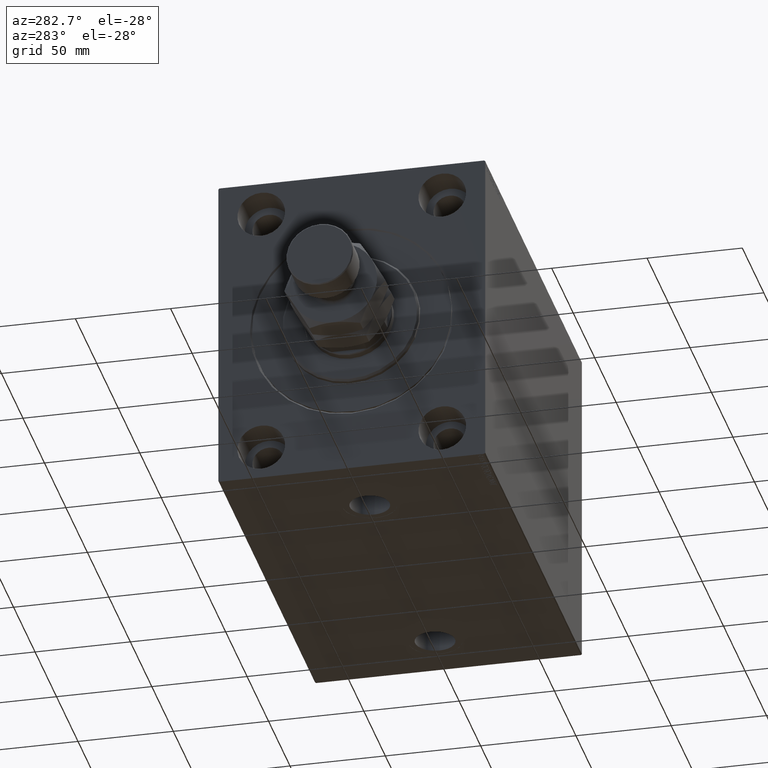
[diagram: clean part render]
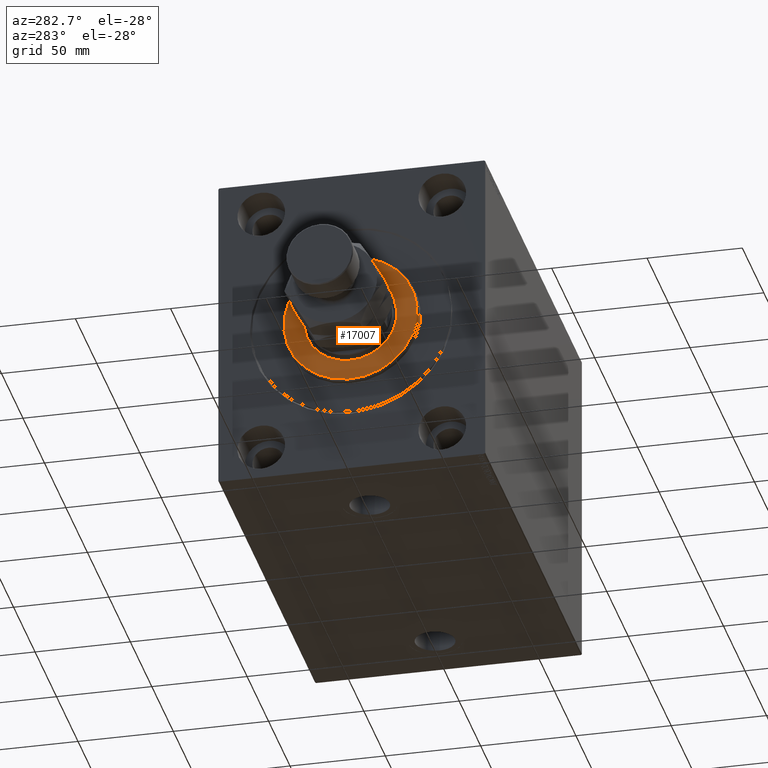
[diagram: same view with one face highlighted and labeled with its STEP entity id]
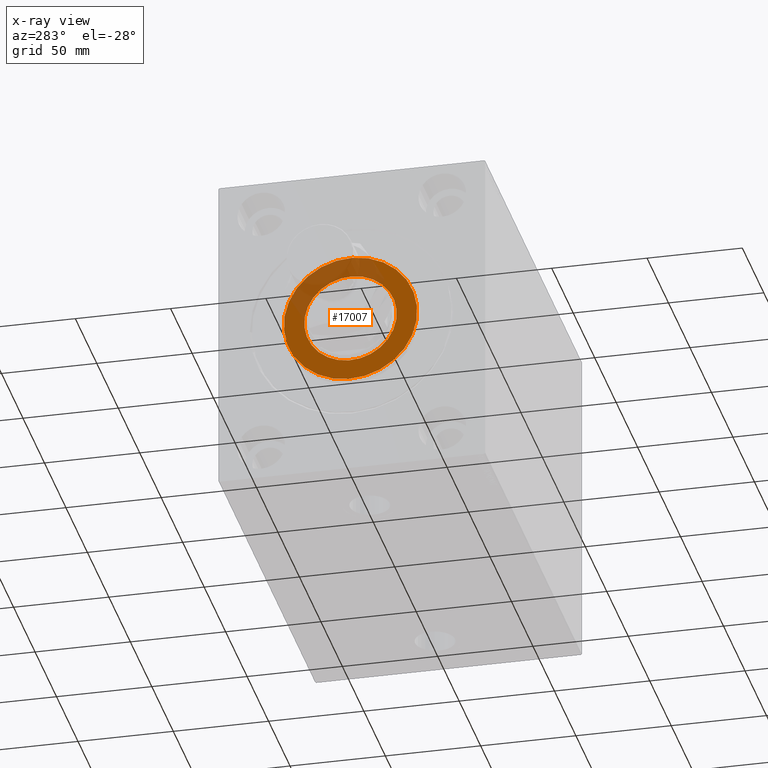
[diagram: x-ray of the same camera — body ghosted, the highlighted face saturated]
A machine part, auxiliary view. The second image highlights one B-rep face of the part: STEP entity #17007.
The next image is the same camera in x-ray: the body ghosted, the highlighted face saturated — about 29% of this face is hidden behind the body in this view.
In plain terms, the highlighted planar face has unit normal (-1, 0, 0).
Its self-contained STEP definition (entity closure, byte-faithful):
#1487 = CARTESIAN_POINT ( 'NONE',  ( 3.000000000000000000, 4.347496136973104859E-15, -35.00000000000002842 ) ) ;
#2569 = DIRECTION ( 'NONE',  ( 0.000000000000000000, 0.000000000000000000, -1.000000000000000000 ) ) ;
#3157 = CARTESIAN_POINT ( 'NONE',  ( 3.000000000000000000, 0.000000000000000000, 0.000000000000000000 ) ) ;
#5021 = EDGE_CURVE ( 'NONE', #36407, #32054, #32203, .T. ) ;
#9462 = DIRECTION ( 'NONE',  ( 0.000000000000000000, 0.000000000000000000, -1.000000000000000000 ) ) ;
#9938 = FACE_OUTER_BOUND ( 'NONE', #25736, .T. ) ;
#15003 = CIRCLE ( 'NONE', #21058, 24.25000000000000000 ) ;
#15367 = ORIENTED_EDGE ( 'NONE', *, *, #32308, .T. ) ;
#15950 = ORIENTED_EDGE ( 'NONE', *, *, #19491, .T. ) ;
#16581 = ORIENTED_EDGE ( 'NONE', *, *, #5021, .T. ) ;
#16688 = CARTESIAN_POINT ( 'NONE',  ( 3.000000000000000000, 0.000000000000000000, 0.000000000000000000 ) ) ;
#17007 = ADVANCED_FACE ( 'NONE', ( #9938, #27790 ), #42786, .T. ) ;
#18783 = DIRECTION ( 'NONE',  ( -1.000000000000000000, 0.000000000000000000, -0.000000000000000000 ) ) ;
#19491 = EDGE_CURVE ( 'NONE', #43676, #28395, #30539, .T. ) ;
#19613 = CARTESIAN_POINT ( 'NONE',  ( 3.000000000000000000, 0.000000000000000000, 35.00000000000002842 ) ) ;
#20427 = CARTESIAN_POINT ( 'NONE',  ( 3.000000000000000000, 0.000000000000000000, 0.000000000000000000 ) ) ;
#21058 = AXIS2_PLACEMENT_3D ( 'NONE', #23051, #18783, #25919 ) ;
#22291 = CARTESIAN_POINT ( 'NONE',  ( 3.000000000000000000, 0.000000000000000000, 24.25000000000000000 ) ) ;
#22322 = AXIS2_PLACEMENT_3D ( 'NONE', #16688, #30498, #27169 ) ;
#22717 = CARTESIAN_POINT ( 'NONE',  ( 3.000000000000000000, 2.969768487932331287E-15, -24.25000000000000000 ) ) ;
#23051 = CARTESIAN_POINT ( 'NONE',  ( 3.000000000000000000, 0.000000000000000000, 0.000000000000000000 ) ) ;
#24233 = CARTESIAN_POINT ( 'NONE',  ( 3.000000000000000000, 0.000000000000000000, 0.000000000000000000 ) ) ;
#25736 = EDGE_LOOP ( 'NONE', ( #15950, #15367 ) ) ;
#25919 = DIRECTION ( 'NONE',  ( 0.000000000000000000, 0.000000000000000000, -1.000000000000000000 ) ) ;
#26587 = ORIENTED_EDGE ( 'NONE', *, *, #40603, .T. ) ;
#27169 = DIRECTION ( 'NONE',  ( 0.000000000000000000, 0.000000000000000000, -1.000000000000000000 ) ) ;
#27790 = FACE_BOUND ( 'NONE', #40060, .T. ) ;
#28395 = VERTEX_POINT ( 'NONE', #1487 ) ;
#28511 = CIRCLE ( 'NONE', #39929, 35.00000000000002842 ) ;
#30138 = AXIS2_PLACEMENT_3D ( 'NONE', #24233, #45886, #2569 ) ;
#30498 = DIRECTION ( 'NONE',  ( -1.000000000000000000, 0.000000000000000000, -0.000000000000000000 ) ) ;
#30539 = CIRCLE ( 'NONE', #33592, 35.00000000000002842 ) ;
#32054 = VERTEX_POINT ( 'NONE', #22717 ) ;
#32187 = DIRECTION ( 'NONE',  ( 0.000000000000000000, 0.000000000000000000, -1.000000000000000000 ) ) ;
#32203 = CIRCLE ( 'NONE', #22322, 24.25000000000000000 ) ;
#32308 = EDGE_CURVE ( 'NONE', #28395, #43676, #28511, .T. ) ;
#33592 = AXIS2_PLACEMENT_3D ( 'NONE', #3157, #43844, #32187 ) ;
#35160 = DIRECTION ( 'NONE',  ( 1.000000000000000000, -0.000000000000000000, 0.000000000000000000 ) ) ;
#36407 = VERTEX_POINT ( 'NONE', #22291 ) ;
#39929 = AXIS2_PLACEMENT_3D ( 'NONE', #20427, #35160, #9462 ) ;
#40060 = EDGE_LOOP ( 'NONE', ( #16581, #26587 ) ) ;
#40603 = EDGE_CURVE ( 'NONE', #32054, #36407, #15003, .T. ) ;
#42786 = PLANE ( 'NONE',  #30138 ) ;
#43676 = VERTEX_POINT ( 'NONE', #19613 ) ;
#43844 = DIRECTION ( 'NONE',  ( 1.000000000000000000, -0.000000000000000000, 0.000000000000000000 ) ) ;
#45886 = DIRECTION ( 'NONE',  ( 1.000000000000000000, -0.000000000000000000, 0.000000000000000000 ) ) ;